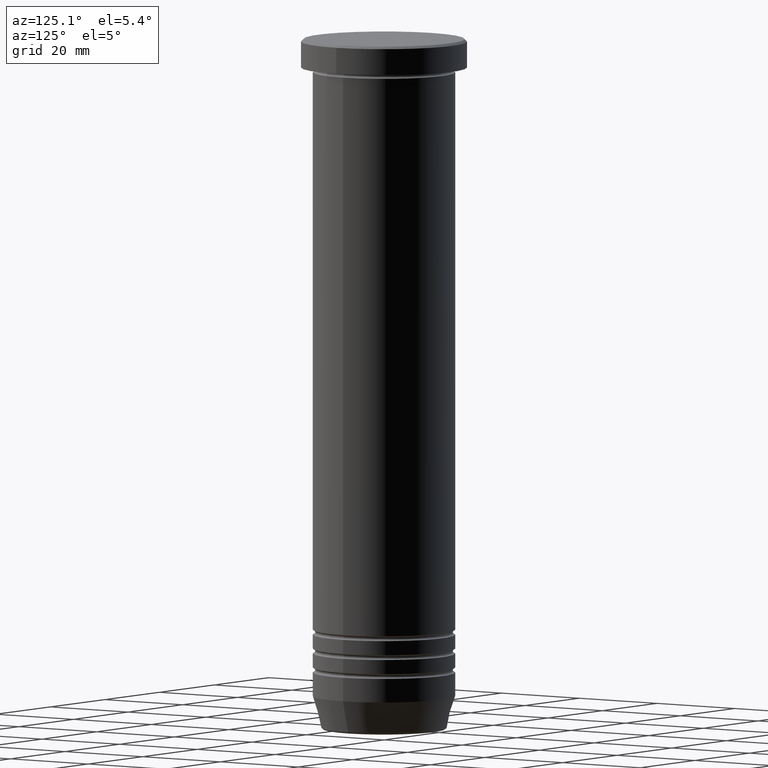
[diagram: clean part render]
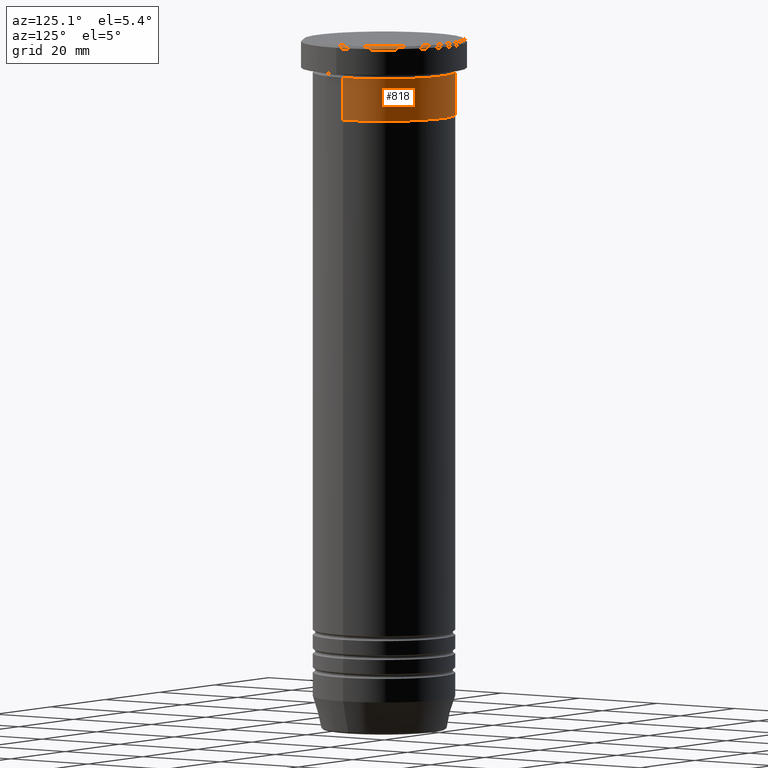
[diagram: same view with one face highlighted and labeled with its STEP entity id]
A machine part, auxiliary view. The second image highlights one B-rep face of the part: STEP entity #818.
In plain terms, the highlighted cylindrical surface (partial cylindrical patch) has radius 15 mm, axis along (-0, -0, 1).
Its self-contained STEP definition (entity closure, byte-faithful):
#105 = VERTEX_POINT ( 'NONE', #577 ) ;
#150 = DIRECTION ( 'NONE',  ( -0.000000000000000000, -0.000000000000000000, 1.000000000000000000 ) ) ;
#163 = CYLINDRICAL_SURFACE ( 'NONE', #283, 15.00000000000000000 ) ;
#180 = LINE ( 'NONE', #889, #546 ) ;
#211 = AXIS2_PLACEMENT_3D ( 'NONE', #248, #605, #515 ) ;
#248 = CARTESIAN_POINT ( 'NONE',  ( 0.000000000000000000, 0.000000000000000000, -6.999999999999999112 ) ) ;
#283 = AXIS2_PLACEMENT_3D ( 'NONE', #346, #696, #867 ) ;
#298 = LINE ( 'NONE', #1013, #514 ) ;
#346 = CARTESIAN_POINT ( 'NONE',  ( 0.000000000000000000, 0.000000000000000000, 0.000000000000000000 ) ) ;
#387 = DIRECTION ( 'NONE',  ( -0.000000000000000000, -0.000000000000000000, 1.000000000000000000 ) ) ;
#388 = ORIENTED_EDGE ( 'NONE', *, *, #1131, .T. ) ;
#507 = DIRECTION ( 'NONE',  ( 1.000000000000000000, 0.000000000000000000, 0.000000000000000000 ) ) ;
#514 = VECTOR ( 'NONE', #387, 1000.000000000000000 ) ;
#515 = DIRECTION ( 'NONE',  ( 1.000000000000000000, 0.000000000000000000, 0.000000000000000000 ) ) ;
#546 = VECTOR ( 'NONE', #717, 1000.000000000000000 ) ;
#577 = CARTESIAN_POINT ( 'NONE',  ( 15.00000000000000000, 0.000000000000000000, -16.00000000000000000 ) ) ;
#605 = DIRECTION ( 'NONE',  ( -0.000000000000000000, -0.000000000000000000, 1.000000000000000000 ) ) ;
#611 = CARTESIAN_POINT ( 'NONE',  ( 15.00000000000000000, 0.000000000000000000, -6.999999999999999112 ) ) ;
#696 = DIRECTION ( 'NONE',  ( -0.000000000000000000, -0.000000000000000000, 1.000000000000000000 ) ) ;
#717 = DIRECTION ( 'NONE',  ( -0.000000000000000000, -0.000000000000000000, 1.000000000000000000 ) ) ;
#737 = ORIENTED_EDGE ( 'NONE', *, *, #1001, .T. ) ;
#747 = AXIS2_PLACEMENT_3D ( 'NONE', #845, #150, #507 ) ;
#813 = VERTEX_POINT ( 'NONE', #885 ) ;
#818 = ADVANCED_FACE ( 'NONE', ( #1128 ), #163, .T. ) ;
#845 = CARTESIAN_POINT ( 'NONE',  ( 0.000000000000000000, 0.000000000000000000, -16.00000000000000000 ) ) ;
#867 = DIRECTION ( 'NONE',  ( 1.000000000000000000, 0.000000000000000000, 0.000000000000000000 ) ) ;
#885 = CARTESIAN_POINT ( 'NONE',  ( -15.00000000000000000, 1.836970198721029589E-15, -16.00000000000000000 ) ) ;
#886 = ORIENTED_EDGE ( 'NONE', *, *, #1083, .F. ) ;
#889 = CARTESIAN_POINT ( 'NONE',  ( -15.00000000000000000, 1.836970198721029589E-15, 0.000000000000000000 ) ) ;
#910 = EDGE_CURVE ( 'NONE', #1142, #1036, #1007, .T. ) ;
#952 = EDGE_LOOP ( 'NONE', ( #388, #737, #1088, #886 ) ) ;
#953 = CIRCLE ( 'NONE', #747, 15.00000000000000000 ) ;
#1001 = EDGE_CURVE ( 'NONE', #813, #1036, #180, .T. ) ;
#1007 = CIRCLE ( 'NONE', #211, 15.00000000000000000 ) ;
#1013 = CARTESIAN_POINT ( 'NONE',  ( 15.00000000000000000, 0.000000000000000000, 0.000000000000000000 ) ) ;
#1036 = VERTEX_POINT ( 'NONE', #1054 ) ;
#1054 = CARTESIAN_POINT ( 'NONE',  ( -15.00000000000000000, 1.836970198721029589E-15, -6.999999999999999112 ) ) ;
#1083 = EDGE_CURVE ( 'NONE', #105, #1142, #298, .T. ) ;
#1088 = ORIENTED_EDGE ( 'NONE', *, *, #910, .F. ) ;
#1128 = FACE_OUTER_BOUND ( 'NONE', #952, .T. ) ;
#1131 = EDGE_CURVE ( 'NONE', #105, #813, #953, .T. ) ;
#1142 = VERTEX_POINT ( 'NONE', #611 ) ;